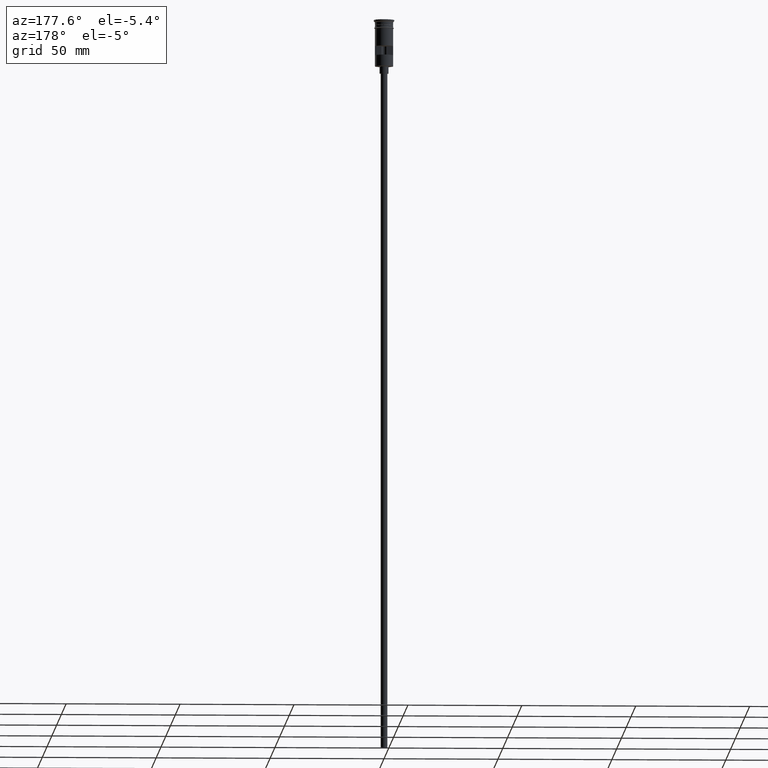
[diagram: clean part render]
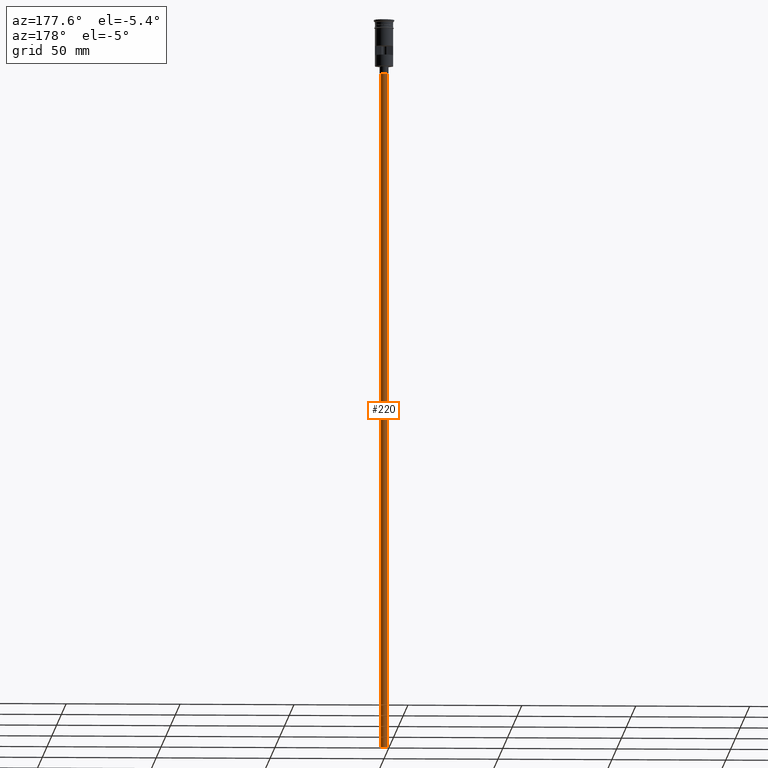
[diagram: same view with one face highlighted and labeled with its STEP entity id]
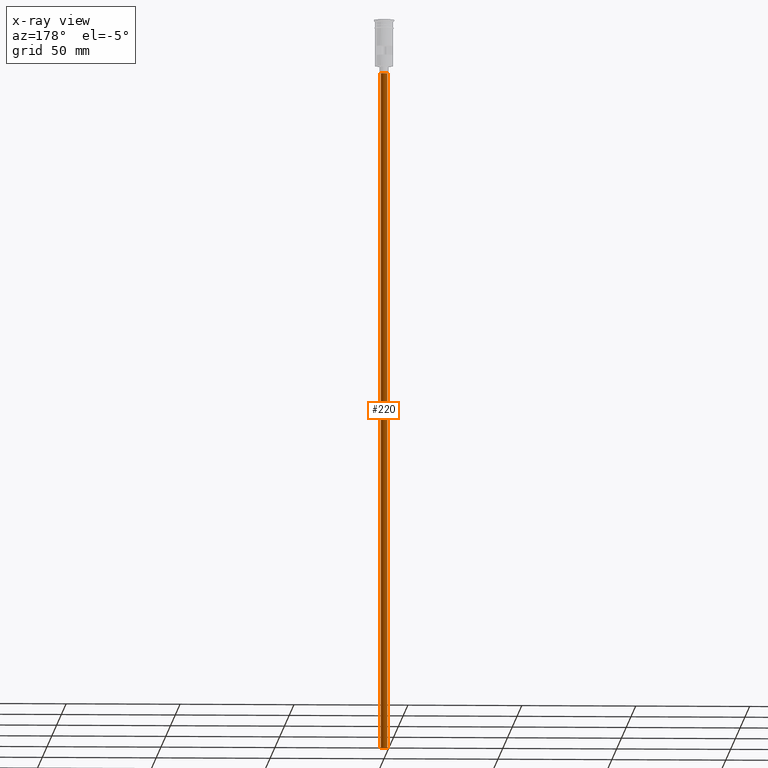
[diagram: x-ray of the same camera — body ghosted, the highlighted face saturated]
A machine part, auxiliary view. The second image highlights one B-rep face of the part: STEP entity #220.
The next image is the same camera in x-ray: the body ghosted, the highlighted face saturated — about 0% of this face is hidden behind the body in this view.
In plain terms, the highlighted cylindrical surface (edge-blend (fillet) strip) has radius 1.5 mm, axis along (-0, -0, 1).
Its self-contained STEP definition (entity closure, byte-faithful):
#2 = CARTESIAN_POINT ( 'NONE',  ( 0.000000000000000000, 0.000000000000000000, -320.5000000000000000 ) ) ;
#9 = EDGE_CURVE ( 'NONE', #901, #657, #1173, .T. ) ;
#179 = CIRCLE ( 'NONE', #335, 1.500000000000000222 ) ;
#220 = ADVANCED_FACE ( 'NONE', ( #1312 ), #677, .T. ) ;
#302 = VERTEX_POINT ( 'NONE', #1329 ) ;
#335 = AXIS2_PLACEMENT_3D ( 'NONE', #2, #744, #991 ) ;
#356 = CARTESIAN_POINT ( 'NONE',  ( 1.500000000000000222, 0.000000000000000000, -320.5000000000000000 ) ) ;
#406 = ORIENTED_EDGE ( 'NONE', *, *, #9, .T. ) ;
#424 = EDGE_CURVE ( 'NONE', #302, #796, #179, .T. ) ;
#500 = DIRECTION ( 'NONE',  ( 0.000000000000000000, 0.000000000000000000, -1.000000000000000000 ) ) ;
#519 = VECTOR ( 'NONE', #1564, 1000.000000000000000 ) ;
#551 = DIRECTION ( 'NONE',  ( -0.000000000000000000, -0.000000000000000000, 1.000000000000000000 ) ) ;
#567 = CARTESIAN_POINT ( 'NONE',  ( -1.500000000000000222, 1.836970198721030181E-16, -320.5000000000000000 ) ) ;
#647 = EDGE_LOOP ( 'NONE', ( #769, #1308, #406, #1112 ) ) ;
#657 = VERTEX_POINT ( 'NONE', #1410 ) ;
#677 = CYLINDRICAL_SURFACE ( 'NONE', #909, 1.500000000000000222 ) ;
#744 = DIRECTION ( 'NONE',  ( 0.000000000000000000, 0.000000000000000000, -1.000000000000000000 ) ) ;
#764 = CARTESIAN_POINT ( 'NONE',  ( -1.500000000000000222, 1.836970198721030181E-16, -23.49999999999999645 ) ) ;
#769 = ORIENTED_EDGE ( 'NONE', *, *, #424, .F. ) ;
#796 = VERTEX_POINT ( 'NONE', #356 ) ;
#802 = DIRECTION ( 'NONE',  ( 1.000000000000000000, 0.000000000000000000, 0.000000000000000000 ) ) ;
#901 = VERTEX_POINT ( 'NONE', #764 ) ;
#909 = AXIS2_PLACEMENT_3D ( 'NONE', #948, #957, #802 ) ;
#939 = VECTOR ( 'NONE', #551, 1000.000000000000000 ) ;
#948 = CARTESIAN_POINT ( 'NONE',  ( 0.000000000000000000, 0.000000000000000000, -320.5000000000000000 ) ) ;
#957 = DIRECTION ( 'NONE',  ( -0.000000000000000000, -0.000000000000000000, 1.000000000000000000 ) ) ;
#970 = LINE ( 'NONE', #567, #519 ) ;
#991 = DIRECTION ( 'NONE',  ( -1.000000000000000000, 0.000000000000000000, 0.000000000000000000 ) ) ;
#1051 = LINE ( 'NONE', #1521, #939 ) ;
#1067 = EDGE_CURVE ( 'NONE', #302, #901, #970, .T. ) ;
#1112 = ORIENTED_EDGE ( 'NONE', *, *, #1346, .F. ) ;
#1118 = AXIS2_PLACEMENT_3D ( 'NONE', #1243, #500, #1252 ) ;
#1173 = CIRCLE ( 'NONE', #1118, 1.500000000000000222 ) ;
#1243 = CARTESIAN_POINT ( 'NONE',  ( 0.000000000000000000, 0.000000000000000000, -23.49999999999999645 ) ) ;
#1252 = DIRECTION ( 'NONE',  ( -1.000000000000000000, 0.000000000000000000, 0.000000000000000000 ) ) ;
#1308 = ORIENTED_EDGE ( 'NONE', *, *, #1067, .T. ) ;
#1312 = FACE_OUTER_BOUND ( 'NONE', #647, .T. ) ;
#1329 = CARTESIAN_POINT ( 'NONE',  ( -1.500000000000000222, 1.836970198721030181E-16, -320.5000000000000000 ) ) ;
#1346 = EDGE_CURVE ( 'NONE', #796, #657, #1051, .T. ) ;
#1410 = CARTESIAN_POINT ( 'NONE',  ( 1.500000000000000222, 0.000000000000000000, -23.49999999999999645 ) ) ;
#1521 = CARTESIAN_POINT ( 'NONE',  ( 1.500000000000000222, 0.000000000000000000, -320.5000000000000000 ) ) ;
#1564 = DIRECTION ( 'NONE',  ( -0.000000000000000000, -0.000000000000000000, 1.000000000000000000 ) ) ;